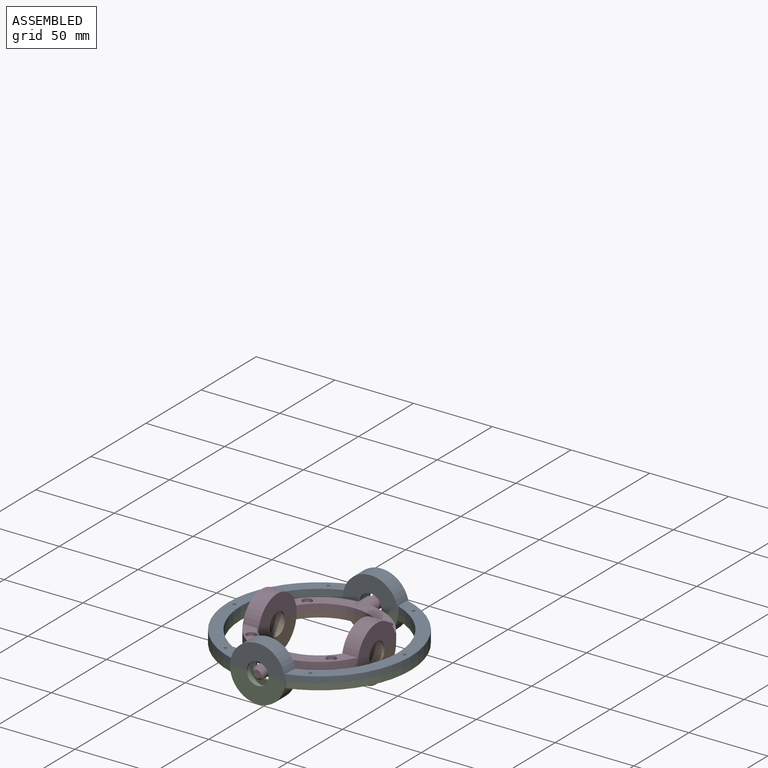
[diagram: assembled view]
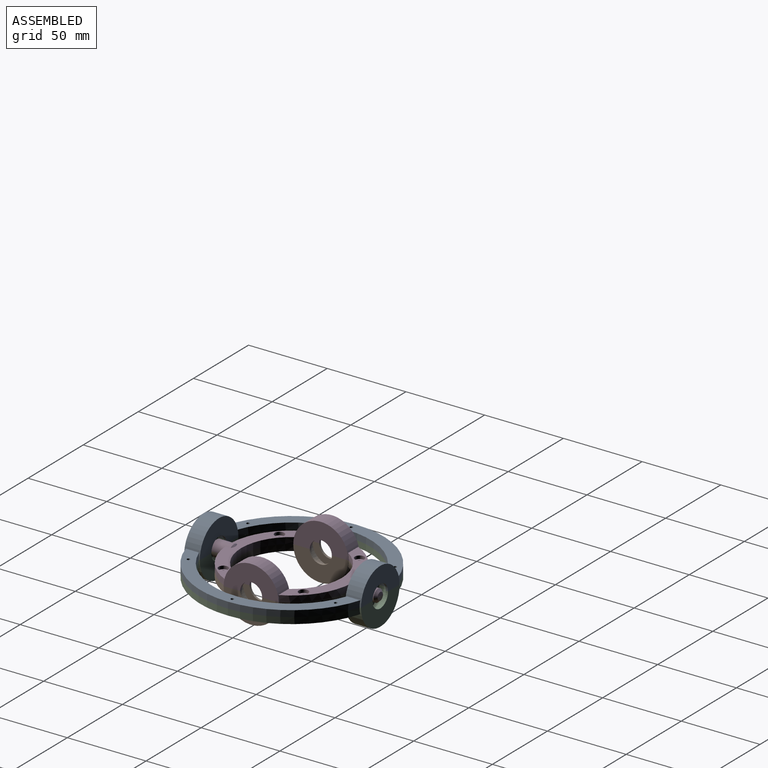
[diagram: assembled view, second angle]
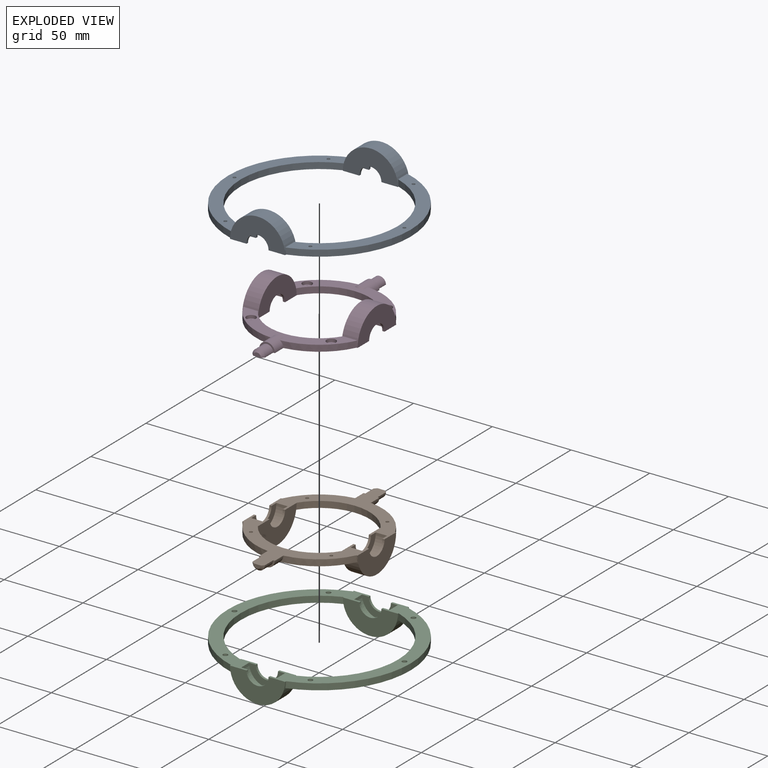
[diagram: exploded view]
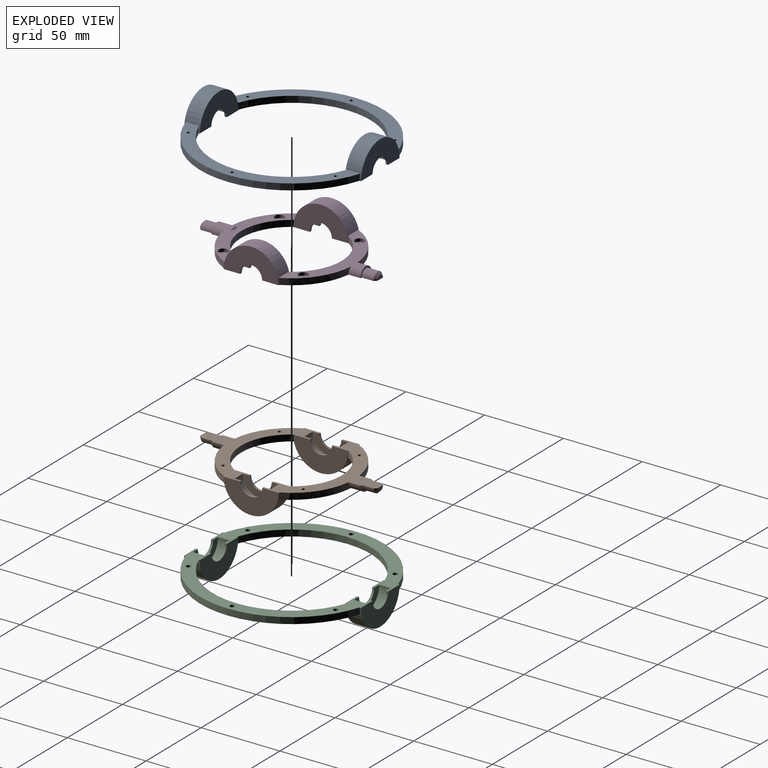
[diagram: exploded view, second angle]
ASSEMBLY  parts=4 mates=7
PART A: 30 faces, bbox 116x112.4x17.5 mm
  f0: cylinder r=50mm len=94.02mm, axis (0,0,1), area 486.6mm2, adj f4,f12,f20,f28
  f1: cylinder r=50mm len=94.02mm, axis (0,0,1), area 486.6mm2, adj f4,f12,f21,f29
  f2: cylinder r=58mm len=110.88mm, axis (0,0,1), area 587.9mm2, adj f4,f12,f20,f28
  f3: cylinder r=58mm len=110.88mm, axis (0,0,1), area 587.9mm2, adj f4,f12,f21,f29
  f4: cylinder r=17.5mm len=35mm, axis (0,-1,0), area 481.6mm2, adj f0,f1,f2,f3,f7,f11,f20,f21
  f5: cylinder r=11.35mm len=22.7mm, axis (0,-1,0), area 256.7mm2, adj f8,f9,f28,f29
  f6: cylinder r=7mm len=14mm, axis (0,1,0), area 30.8mm2, adj f7,f8,f28,f29
  f7: plane 35x17.5mm, normal (0,-1,0), area 404.1mm2, adj f4,f6,f28,f29
  f8: plane 22.7x11.35mm, normal (0,1,0), area 125.4mm2, adj f5,f6,f28,f29
  f9: plane 22.7x11.35mm, normal (0,-1,0), area 125.4mm2, adj f5,f10,f28,f29
  f10: cylinder r=7mm len=14mm, axis (0,-1,0), area 30.8mm2, adj f9,f11,f28,f29
  f11: plane 35x17.5mm, normal (0,1,0), area 404.1mm2, adj f4,f10,f28,f29
  f12: cylinder r=17.5mm len=35mm, axis (0,1,0), area 481.6mm2, adj f0,f1,f2,f3,f15,f19,f20,f21
  f13: cylinder r=11.35mm len=22.7mm, axis (0,1,0), area 256.7mm2, adj f16,f17,f28,f29
  f14: cylinder r=7mm len=14mm, axis (0,-1,0), area 30.8mm2, adj f15,f16,f28,f29
  f15: plane 35x17.5mm, normal (0,1,0), area 404.1mm2, adj f12,f14,f28,f29
  f16: plane 22.7x11.35mm, normal (0,-1,0), area 125.4mm2, adj f13,f14,f28,f29
  f17: plane 22.7x11.35mm, normal (0,1,0), area 125.4mm2, adj f13,f18,f28,f29
  f18: cylinder r=7mm len=14mm, axis (0,1,0), area 30.8mm2, adj f17,f19,f28,f29
  f19: plane 35x17.5mm, normal (0,-1,0), area 404.1mm2, adj f12,f18,f28,f29
  f20: plane 110.88x40.96mm, normal (0,0,1), area 1070.4mm2, adj f0,f2,f4,f12,f25,f26,f27
  f21: plane 110.88x40.96mm, normal (0,0,1), area 1070.4mm2, adj f1,f3,f4,f12,f22,f23,f24
  f22: cylinder r=1mm len=4mm, axis (0,0,-1), area 25.1mm2, adj f21,f29
  f23: cylinder r=1mm len=4mm, axis (0,0,-1), area 25.1mm2, adj f21,f29
  f24: cylinder r=1mm len=4mm, axis (0,0,-1), area 25.1mm2, adj f21,f29
  f25: cylinder r=1mm len=4mm, axis (0,0,-1), area 25.1mm2, adj f20,f28
  f26: cylinder r=1mm len=4mm, axis (0,0,-1), area 25.1mm2, adj f20,f28
  f27: cylinder r=1mm len=4mm, axis (0,0,-1), area 25.1mm2, adj f20,f28
  f28: plane 112.4x51mm, normal (0,0,-1), area 1209.9mm2, adj f0,f2,f4,f5,f6,f7,f8,f9
  f29: plane 112.4x51mm, normal (0,0,-1), area 1209.9mm2, adj f1,f3,f4,f5,f6,f7,f8,f9
PART B: 42 faces, bbox 73.2x112.8x17.5 mm
  f0: cylinder r=40mm len=33.19mm, axis (0,0,1), area 161.9mm2, adj f6,f26,f32,f40
  f1: cylinder r=40mm len=33.19mm, axis (0,0,1), area 161.9mm2, adj f14,f22,f33,f41
  f2: cylinder r=32mm len=54.18mm, axis (0,0,1), area 255.5mm2, adj f6,f14,f32,f40
  f3: cylinder r=40mm len=33.19mm, axis (0,0,1), area 161.9mm2, adj f14,f26,f32,f40
  f4: cylinder r=32mm len=54.18mm, axis (0,0,1), area 255.5mm2, adj f6,f14,f33,f41
  f5: cylinder r=40mm len=33.19mm, axis (0,0,1), area 161.9mm2, adj f6,f22,f33,f41
  f6: cylinder r=17.5mm len=35mm, axis (-1,0,0), area 476mm2, adj f0,f2,f4,f5,f10,f12,f32,f33
  f7: cylinder r=11.35mm len=22.7mm, axis (-1,0,0), area 256.7mm2, adj f8,f13,f40,f41
  f8: plane 22.7x11.35mm, normal (-1,0,0), area 125.4mm2, adj f7,f9,f40,f41
  f9: cylinder r=7mm len=14mm, axis (-1,0,0), area 30.8mm2, adj f8,f10,f40,f41
  f10: plane 35x17.5mm, normal (1,0,0), area 404.1mm2, adj f6,f9,f40,f41
  f11: cylinder r=7mm len=14mm, axis (1,0,0), area 30.8mm2, adj f12,f13,f40,f41
  f12: plane 35x17.5mm, normal (-1,0,0), area 404.1mm2, adj f6,f11,f40,f41
  f13: plane 22.7x11.35mm, normal (1,0,0), area 125.4mm2, adj f7,f11,f40,f41
  f14: cylinder r=17.5mm len=35mm, axis (1,0,0), area 476mm2, adj f1,f2,f3,f4,f18,f21,f32,f33
  f15: cylinder r=11.35mm len=22.7mm, axis (1,0,0), area 256.7mm2, adj f16,f19,f40,f41
  f16: plane 22.7x11.35mm, normal (-1,0,0), area 125.4mm2, adj f15,f17,f40,f41
  f17: cylinder r=7mm len=14mm, axis (-1,0,0), area 30.8mm2, adj f16,f18,f40,f41
  f18: plane 35x17.5mm, normal (1,0,0), area 404.1mm2, adj f14,f17,f40,f41
  f19: plane 22.7x11.35mm, normal (1,0,0), area 125.4mm2, adj f15,f20,f40,f41
  f20: cylinder r=7mm len=14mm, axis (1,0,0), area 30.8mm2, adj f19,f21,f40,f41
  f21: plane 35x17.5mm, normal (-1,0,0), area 404.1mm2, adj f14,f20,f40,f41
  f22: cylinder r=5mm len=10.8mm, axis (0,1,0), area 140.1mm2, adj f1,f5,f23,f33,f34,f41
  f23: plane 10x5mm, normal (0,1,0), area 14.8mm2, adj f22,f24,f41
  f24: cylinder r=3.95mm len=7.9mm, axis (0,-1,0), area 93.1mm2, adj f23,f30,f41
  f25: plane 4.9x2.45mm, normal (0,1,0), area 9.4mm2, adj f30,f41
  f26: cylinder r=5mm len=10.8mm, axis (0,-1,0), area 140.1mm2, adj f0,f3,f27,f32,f35,f40
  f27: plane 10x5mm, normal (0,-1,0), area 14.8mm2, adj f26,f28,f40
  f28: cylinder r=3.95mm len=7.9mm, axis (0,1,0), area 93.1mm2, adj f27,f31,f40
  f29: plane 4.9x2.45mm, normal (0,-1,0), area 9.4mm2, adj f31,f40
  f30: cone r=2.45mm half-angle=45deg, axis (0,-1,0), area 21.3mm2, adj f24,f25,f41
  f31: cone r=2.45mm half-angle=45deg, axis (0,1,0), area 21.3mm2, adj f28,f29,f40
  f32: plane 72.38x22.85mm, normal (0,0,1), area 590.3mm2, adj f0,f2,f3,f6,f14,f26,f35,f38
  f33: plane 72.38x22.85mm, normal (0,0,1), area 590.3mm2, adj f1,f4,f5,f6,f14,f22,f34,f36
  f34: cone r=5mm half-angle=45deg, axis (0,1,0), area 5.8mm2, adj f22,f33
  f35: cone r=5mm half-angle=45deg, axis (0,-1,0), area 5.8mm2, adj f26,f32
  f36: cylinder r=1mm len=4mm, axis (0,0,-1), area 25.1mm2, adj f33,f41
  f37: cylinder r=1mm len=4mm, axis (0,0,-1), area 25.1mm2, adj f33,f41
  f38: cylinder r=1mm len=4mm, axis (0,0,-1), area 25.1mm2, adj f32,f40
  f39: cylinder r=1mm len=4mm, axis (0,0,-1), area 25.1mm2, adj f32,f40
  f40: plane 73.2x49.4mm, normal (0,0,-1), area 897.1mm2, adj f0,f2,f3,f6,f7,f8,f9,f10
  f41: plane 73.2x49.4mm, normal (0,0,-1), area 897.1mm2, adj f1,f4,f5,f6,f7,f8,f9,f10
PART C: 42 faces, bbox 116x112.4x17.5 mm
  f0: cylinder r=50mm len=94.02mm, axis (0,0,-1), area 486.6mm2, adj f4,f6,f14,f41
  f1: cylinder r=50mm len=94.02mm, axis (0,0,-1), area 486.6mm2, adj f5,f6,f14,f40
  f2: cylinder r=58mm len=110.88mm, axis (0,0,-1), area 587.9mm2, adj f4,f6,f14,f41
  f3: cylinder r=58mm len=110.88mm, axis (0,0,-1), area 587.9mm2, adj f5,f6,f14,f40
  f4: plane 110.88x40.96mm, normal (0,0,1), area 995mm2, adj f0,f2,f6,f14,f34,f36,f38
  f5: plane 110.88x40.96mm, normal (0,0,1), area 995mm2, adj f1,f3,f6,f14,f28,f30,f32
  f6: cylinder r=17.5mm len=35mm, axis (0,-1,0), area 481.6mm2, adj f0,f1,f2,f3,f4,f5,f9,f13
  f7: cylinder r=11.35mm len=22.7mm, axis (0,-1,0), area 256.7mm2, adj f10,f11,f40,f41
  f8: cylinder r=7mm len=14mm, axis (0,1,0), area 30.8mm2, adj f9,f10,f40,f41
  f9: plane 35x17.5mm, normal (0,-1,0), area 404.1mm2, adj f6,f8,f40,f41
  f10: plane 22.7x11.35mm, normal (0,1,0), area 125.4mm2, adj f7,f8,f40,f41
  f11: plane 22.7x11.35mm, normal (0,-1,0), area 125.4mm2, adj f7,f12,f40,f41
  f12: cylinder r=7mm len=14mm, axis (0,-1,0), area 30.8mm2, adj f11,f13,f40,f41
  f13: plane 35x17.5mm, normal (0,1,0), area 404.1mm2, adj f6,f12,f40,f41
  f14: cylinder r=17.5mm len=35mm, axis (0,1,0), area 481.6mm2, adj f0,f1,f2,f3,f4,f5,f17,f21
  f15: cylinder r=11.35mm len=22.7mm, axis (0,1,0), area 256.7mm2, adj f18,f19,f40,f41
  f16: cylinder r=7mm len=14mm, axis (0,-1,0), area 30.8mm2, adj f17,f18,f40,f41
  f17: plane 35x17.5mm, normal (0,1,0), area 404.1mm2, adj f14,f16,f40,f41
  f18: plane 22.7x11.35mm, normal (0,-1,0), area 125.4mm2, adj f15,f16,f40,f41
  f19: plane 22.7x11.35mm, normal (0,1,0), area 125.4mm2, adj f15,f20,f40,f41
  f20: cylinder r=7mm len=14mm, axis (0,1,0), area 30.8mm2, adj f19,f21,f40,f41
  f21: plane 35x17.5mm, normal (0,-1,0), area 404.1mm2, adj f14,f20,f40,f41
  f22: cylinder r=1.5mm len=3mm, axis (0,0,1), area 18.8mm2, adj f39,f41
  f23: cylinder r=1.5mm len=3mm, axis (0,0,1), area 18.8mm2, adj f37,f41
  f24: cylinder r=1.5mm len=3mm, axis (0,0,1), area 18.8mm2, adj f35,f41
  f25: cylinder r=1.5mm len=3mm, axis (0,0,1), area 18.8mm2, adj f33,f40
  f26: cylinder r=1.5mm len=3mm, axis (0,0,1), area 18.8mm2, adj f31,f40
  f27: cylinder r=1.5mm len=3mm, axis (0,0,1), area 18.8mm2, adj f29,f40
  f28: cylinder r=3mm len=6mm, axis (0,0,1), area 37.7mm2, adj f5,f29
  f29: plane 6x6mm, normal (0,0,1), area 21.2mm2, adj f27,f28
  f30: cylinder r=3mm len=6mm, axis (0,0,1), area 37.7mm2, adj f5,f31
  f31: plane 6x6mm, normal (0,0,1), area 21.2mm2, adj f26,f30
  f32: cylinder r=3mm len=6mm, axis (0,0,1), area 37.7mm2, adj f5,f33
  f33: plane 6x6mm, normal (0,0,1), area 21.2mm2, adj f25,f32
  f34: cylinder r=3mm len=6mm, axis (0,0,1), area 37.7mm2, adj f4,f35
  f35: plane 6x6mm, normal (0,0,1), area 21.2mm2, adj f24,f34
  f36: cylinder r=3mm len=6mm, axis (0,0,1), area 37.7mm2, adj f4,f37
  f37: plane 6x6mm, normal (0,0,1), area 21.2mm2, adj f23,f36
  f38: cylinder r=3mm len=6mm, axis (0,0,1), area 37.7mm2, adj f4,f39
  f39: plane 6x6mm, normal (0,0,1), area 21.2mm2, adj f22,f38
  f40: plane 112.4x51mm, normal (0,0,-1), area 1198.1mm2, adj f1,f3,f6,f7,f8,f9,f10,f11
  f41: plane 112.4x51mm, normal (0,0,-1), area 1198.1mm2, adj f0,f2,f6,f7,f8,f9,f10,f11
PART D: 50 faces, bbox 73.2x112.8x17.5 mm
  f0: cylinder r=40mm len=33.19mm, axis (0,0,-1), area 161.9mm2, adj f4,f8,f29,f48
  f1: cylinder r=40mm len=33.19mm, axis (0,0,-1), area 161.9mm2, adj f7,f16,f24,f49
  f2: cylinder r=32mm len=54.18mm, axis (0,0,-1), area 255.5mm2, adj f4,f8,f16,f48
  f3: cylinder r=40mm len=33.19mm, axis (0,0,-1), area 161.9mm2, adj f4,f16,f29,f48
  f4: plane 72.38x22.85mm, normal (0,0,1), area 540mm2, adj f0,f2,f3,f8,f16,f29,f31,f44
  f5: cylinder r=32mm len=54.18mm, axis (0,0,-1), area 255.5mm2, adj f7,f8,f16,f49
  f6: cylinder r=40mm len=33.19mm, axis (0,0,-1), area 161.9mm2, adj f7,f8,f24,f49
  f7: plane 72.38x22.85mm, normal (0,0,1), area 540mm2, adj f1,f5,f6,f8,f16,f24,f26,f40
  f8: cylinder r=17.5mm len=35mm, axis (1,0,0), area 476mm2, adj f0,f2,f4,f5,f6,f7,f12,f14
  f9: cylinder r=11.35mm len=22.7mm, axis (1,0,0), area 256.7mm2, adj f10,f15,f48,f49
  f10: plane 22.7x11.35mm, normal (1,0,0), area 125.4mm2, adj f9,f11,f48,f49
  f11: cylinder r=7mm len=14mm, axis (1,0,0), area 30.8mm2, adj f10,f12,f48,f49
  f12: plane 35x17.5mm, normal (-1,0,0), area 404.1mm2, adj f8,f11,f48,f49
  f13: cylinder r=7mm len=14mm, axis (-1,0,0), area 30.8mm2, adj f14,f15,f48,f49
  f14: plane 35x17.5mm, normal (1,0,0), area 404.1mm2, adj f8,f13,f48,f49
  f15: plane 22.7x11.35mm, normal (-1,0,0), area 125.4mm2, adj f9,f13,f48,f49
  f16: cylinder r=17.5mm len=35mm, axis (-1,0,0), area 476mm2, adj f1,f2,f3,f4,f5,f7,f20,f23
  f17: cylinder r=11.35mm len=22.7mm, axis (-1,0,0), area 256.7mm2, adj f18,f21,f48,f49
  f18: plane 22.7x11.35mm, normal (1,0,0), area 125.4mm2, adj f17,f19,f48,f49
  f19: cylinder r=7mm len=14mm, axis (1,0,0), area 30.8mm2, adj f18,f20,f48,f49
  f20: plane 35x17.5mm, normal (-1,0,0), area 404.1mm2, adj f16,f19,f48,f49
  f21: plane 22.7x11.35mm, normal (-1,0,0), area 125.4mm2, adj f17,f22,f48,f49
  f22: cylinder r=7mm len=14mm, axis (-1,0,0), area 30.8mm2, adj f21,f23,f48,f49
  f23: plane 35x17.5mm, normal (1,0,0), area 404.1mm2, adj f16,f22,f48,f49
  f24: cylinder r=5mm len=10.8mm, axis (0,1,0), area 140.1mm2, adj f1,f6,f7,f25,f26,f49
  f25: plane 10x5mm, normal (0,1,0), area 14.8mm2, adj f24,f27,f49
  f26: cone r=5mm half-angle=45deg, axis (0,1,0), area 5.8mm2, adj f7,f24
  f27: cylinder r=3.95mm len=7.9mm, axis (0,-1,0), area 93.1mm2, adj f25,f34,f49
  f28: plane 4.9x2.45mm, normal (0,1,0), area 9.4mm2, adj f34,f49
  f29: cylinder r=5mm len=10.8mm, axis (0,-1,0), area 140.1mm2, adj f0,f3,f4,f30,f31,f48
  f30: plane 10x5mm, normal (0,-1,0), area 14.8mm2, adj f29,f32,f48
  f31: cone r=5mm half-angle=45deg, axis (0,-1,0), area 5.8mm2, adj f4,f29
  f32: cylinder r=3.95mm len=7.9mm, axis (0,1,0), area 93.1mm2, adj f30,f35,f48
  f33: plane 4.9x2.45mm, normal (0,-1,0), area 9.4mm2, adj f35,f48
  f34: cone r=2.45mm half-angle=45deg, axis (0,-1,0), area 21.3mm2, adj f27,f28,f49
  f35: cone r=2.45mm half-angle=45deg, axis (0,1,0), area 21.3mm2, adj f32,f33,f48
  f36: cylinder r=1.5mm len=3mm, axis (0,0,1), area 18.8mm2, adj f47,f48
  f37: cylinder r=1.5mm len=3mm, axis (0,0,1), area 18.8mm2, adj f45,f48
  f38: cylinder r=1.5mm len=3mm, axis (0,0,1), area 18.8mm2, adj f43,f49
  f39: cylinder r=1.5mm len=3mm, axis (0,0,1), area 18.8mm2, adj f41,f49
  f40: cylinder r=3mm len=6mm, axis (0,0,1), area 37.7mm2, adj f7,f41
  f41: plane 6x6mm, normal (0,0,1), area 21.2mm2, adj f39,f40
  f42: cylinder r=3mm len=6mm, axis (0,0,1), area 37.7mm2, adj f7,f43
  f43: plane 6x6mm, normal (0,0,1), area 21.2mm2, adj f38,f42
  f44: cylinder r=3mm len=6mm, axis (0,0,1), area 37.7mm2, adj f4,f45
  f45: plane 6x6mm, normal (0,0,1), area 21.2mm2, adj f37,f44
  f46: cylinder r=3mm len=6mm, axis (0,0,1), area 37.7mm2, adj f4,f47
  f47: plane 6x6mm, normal (0,0,1), area 21.2mm2, adj f36,f46
  f48: plane 73.2x49.4mm, normal (0,0,-1), area 889.3mm2, adj f0,f2,f3,f8,f9,f10,f11,f12
  f49: plane 73.2x49.4mm, normal (0,0,-1), area 889.3mm2, adj f1,f5,f6,f8,f9,f10,f11,f12
PLACE A t=(-1.02,1.88,-6.96)mm
PLACE B rot(axis=(1,0,0),180deg) t=(-1.02,1.68,-6.96)mm
PLACE C rot(axis=(1,0,0),180deg) t=(-1.02,1.88,-6.96)mm fixed
PLACE D t=(-1.02,1.68,-6.96)mm
MATE revolute C.f23 <-> A.f24  axis (0,0,1) through (52.98,1.88,-6.96)mm
MATE revolute B.f22 <-> C.f6  axis (0,1,0) through (-1.02,58.08,-6.96)mm
MATE planar C.f41 <-> A.f26  axis (0,0,1) through (36.92,1.88,-6.96)mm
MATE revolute C.f25 <-> A.f26  axis (0,0,1) through (-55.02,1.88,-6.96)mm
MATE planar B.f41 <-> D.f49  axis (0,0,1) through (-1.02,-28.29,-6.96)mm
MATE revolute D.f38 <-> B.f39  axis (0,0,-1) through (24.43,27.13,-6.96)mm
MATE revolute D.f36 <-> B.f37  axis (0,0,-1) through (-26.48,-23.78,-6.96)mm
